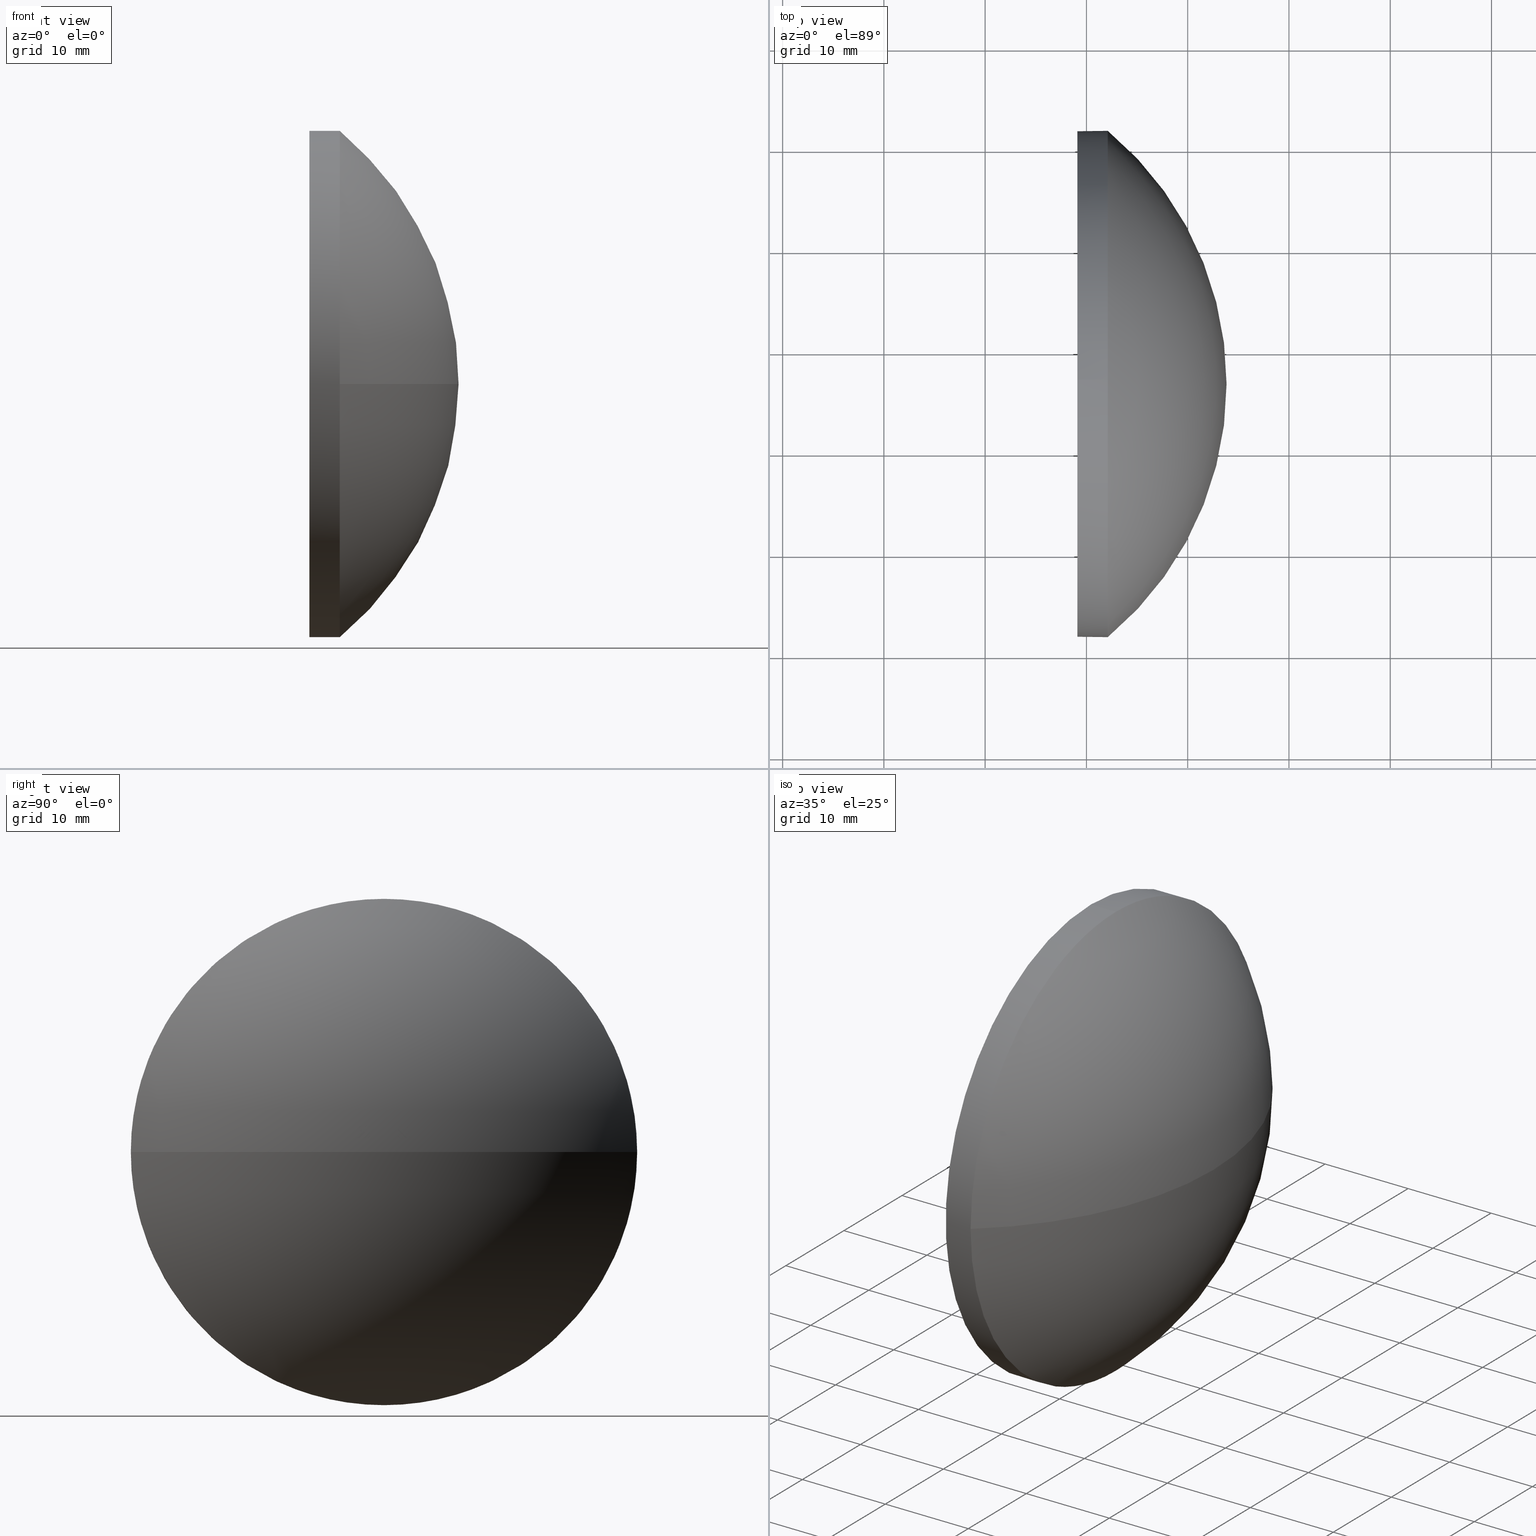
[diagram: canonical four-view strip — front | top / right | iso, engineering-drawing reading convention]
A machine part, canonical four-view strip (front | top / right | iso — engineering-drawing reading convention). The complete STEP part file that produces these views, byte-faithful:
ISO-10303-21;
HEADER;
FILE_DESCRIPTION (( 'STEP AP214' ),
    '1' );
FILE_NAME ('100066.STEP',
    '2019-04-30T06:48:40',
    ( '' ),
    ( '' ),
    'SwSTEP 2.0',
    'SolidWorks 2016',
    '' );
FILE_SCHEMA (( 'AUTOMOTIVE_DESIGN' ));
ENDSEC;

DATA;
#1 = CARTESIAN_POINT ( 'NONE',  ( 442.1104221299683600, 81.67075448152661500, -3.061616997868383800E-015 ) ) ;
#2 = CARTESIAN_POINT ( 'NONE',  ( 439.1104221299683600, 106.6707544815266100, 0.0000000000000000000 ) ) ;
#3 = DIRECTION ( 'NONE',  ( -0.0000000000000000000, 0.0000000000000000000, -1.000000000000000000 ) ) ;
#4 = PRODUCT_DEFINITION ( 'δ֪', '', #47, #152 ) ;
#5 = DIRECTION ( 'NONE',  ( 0.0000000000000000000, 1.000000000000000000, 0.0000000000000000000 ) ) ;
#6 = DIRECTION ( 'NONE',  ( 0.0000000000000000000, 1.224646799147353200E-016, -1.000000000000000000 ) ) ;
#7 =( LENGTH_UNIT ( ) NAMED_UNIT ( * ) SI_UNIT ( .MILLI., .METRE. ) );
#8 = UNCERTAINTY_MEASURE_WITH_UNIT (LENGTH_MEASURE( 1.000000000000000100E-005 ), #176, 'distance_accuracy_value', 'NONE');
#9 =( GEOMETRIC_REPRESENTATION_CONTEXT ( 3 ) GLOBAL_UNCERTAINTY_ASSIGNED_CONTEXT ( ( #126 ) ) GLOBAL_UNIT_ASSIGNED_CONTEXT ( ( #10, #79, #180 ) ) REPRESENTATION_CONTEXT ( 'NONE', 'WORKASPACE' ) );
#10 =( LENGTH_UNIT ( ) NAMED_UNIT ( * ) SI_UNIT ( .MILLI., .METRE. ) );
#11 = ORIENTED_EDGE ( 'NONE', *, *, #138, .T. ) ;
#12 = MECHANICAL_DESIGN_GEOMETRIC_PRESENTATION_REPRESENTATION (  '', ( #43 ), #51 ) ;
#13 = AXIS2_PLACEMENT_3D ( 'NONE', #2, #160, #186 ) ;
#14 = VERTEX_POINT ( 'NONE', #125 ) ;
#15 = STYLED_ITEM ( 'NONE', ( #89 ), #30 ) ;
#16 = ORIENTED_EDGE ( 'NONE', *, *, #128, .F. ) ;
#17 = CARTESIAN_POINT ( 'NONE',  ( 442.1104221299683600, 106.6707544815266100, 0.0000000000000000000 ) ) ;
#18 = UNCERTAINTY_MEASURE_WITH_UNIT (LENGTH_MEASURE( 1.000000000000000100E-005 ), #7, 'distance_accuracy_value', 'NONE');
#19 = DIRECTION ( 'NONE',  ( -1.000000000000000000, -0.0000000000000000000, -0.0000000000000000000 ) ) ;
#20 = DIRECTION ( 'NONE',  ( -0.0000000000000000000, 0.0000000000000000000, -1.000000000000000000 ) ) ;
#21 = DIRECTION ( 'NONE',  ( -1.000000000000000000, -0.0000000000000000000, -0.0000000000000000000 ) ) ;
#22 = MECHANICAL_DESIGN_GEOMETRIC_PRESENTATION_REPRESENTATION (  '', ( #15 ), #9 ) ;
#23 = SURFACE_STYLE_USAGE ( .BOTH. , #98 ) ;
#24 = AXIS2_PLACEMENT_3D ( 'NONE', #73, #35, #175 ) ;
#25 = VECTOR ( 'NONE', #71, 1000.000000000000000 ) ;
#26 = VERTEX_POINT ( 'NONE', #148 ) ;
#27 = ORIENTED_EDGE ( 'NONE', *, *, #138, .F. ) ;
#28 = ORIENTED_EDGE ( 'NONE', *, *, #97, .F. ) ;
#29 = AXIS2_PLACEMENT_3D ( 'NONE', #129, #70, #114 ) ;
#30 = ADVANCED_BREP_SHAPE_REPRESENTATION ( '100066', ( #94, #123 ), #172 ) ;
#31 = EDGE_CURVE ( 'NONE', #183, #64, #182, .T. ) ;
#32 = CARTESIAN_POINT ( 'NONE',  ( 429.6881826927810800, 106.6707544815266100, 25.00000000000000700 ) ) ;
#33 =( NAMED_UNIT ( * ) PLANE_ANGLE_UNIT ( ) SI_UNIT ( $, .RADIAN. ) );
#34 = PLANE ( 'NONE',  #157 ) ;
#35 = DIRECTION ( 'NONE',  ( -1.000000000000000000, -0.0000000000000000000, -0.0000000000000000000 ) ) ;
#36 = DIRECTION ( 'NONE',  ( -1.000000000000000000, -0.0000000000000000000, -0.0000000000000000000 ) ) ;
#37 = APPLICATION_CONTEXT ( 'automotive_design' ) ;
#38 = PRESENTATION_LAYER_ASSIGNMENT (  '', '', ( #15 ) ) ;
#39 = ADVANCED_FACE ( 'NONE', ( #40 ), #161, .T. ) ;
#40 = FACE_OUTER_BOUND ( 'NONE', #56, .T. ) ;
#41 = ORIENTED_EDGE ( 'NONE', *, *, #46, .F. ) ;
#42 = EDGE_CURVE ( 'NONE', #26, #64, #163, .T. ) ;
#43 = STYLED_ITEM ( 'NONE', ( #167 ), #94 ) ;
#44 = EDGE_CURVE ( 'NONE', #96, #67, #112, .T. ) ;
#45 = LINE ( 'NONE', #32, #25 ) ;
#46 = EDGE_CURVE ( 'NONE', #14, #84, #90, .T. ) ;
#47 = PRODUCT_DEFINITION_FORMATION_WITH_SPECIFIED_SOURCE ( '�κ�', '', #147, .NOT_KNOWN. ) ;
#48 = CARTESIAN_POINT ( 'NONE',  ( 442.1104221299683600, 131.6707544815266100, 0.0000000000000000000 ) ) ;
#49 = DIRECTION ( 'NONE',  ( 0.0000000000000000000, 1.000000000000000000, 0.0000000000000000000 ) ) ;
#50 = DIRECTION ( 'NONE',  ( 0.0000000000000000000, 0.0000000000000000000, 1.000000000000000000 ) ) ;
#51 =( GEOMETRIC_REPRESENTATION_CONTEXT ( 3 ) GLOBAL_UNCERTAINTY_ASSIGNED_CONTEXT ( ( #8 ) ) GLOBAL_UNIT_ASSIGNED_CONTEXT ( ( #176, #33, #127 ) ) REPRESENTATION_CONTEXT ( 'NONE', 'WORKASPACE' ) );
#52 = CARTESIAN_POINT ( 'NONE',  ( 0.0000000000000000000, 0.0000000000000000000, 0.0000000000000000000 ) ) ;
#53 = ORIENTED_EDGE ( 'NONE', *, *, #97, .T. ) ;
#54 = FILL_AREA_STYLE ('',( #115 ) ) ;
#55 = COLOUR_RGB ( '',1.000000000000000000, 1.000000000000000000, 1.000000000000000000 ) ;
#56 = EDGE_LOOP ( 'NONE', ( #16, #173, #53, #139, #104 ) ) ;
#57 = PRODUCT_RELATED_PRODUCT_CATEGORY ( 'part', '', ( #147 ) ) ;
#58 = COLOUR_RGB ( '',1.000000000000000000, 1.000000000000000000, 1.000000000000000000 ) ;
#59 = EDGE_CURVE ( 'NONE', #14, #67, #45, .T. ) ;
#60 = CARTESIAN_POINT ( 'NONE',  ( 421.3343309108719800, 106.6707544815266100, 0.0000000000000000000 ) ) ;
#61 = SHAPE_DEFINITION_REPRESENTATION ( #66, #30 ) ;
#62 = FILL_AREA_STYLE_COLOUR ( '', #55 ) ;
#63 = DIRECTION ( 'NONE',  ( -1.000000000000000000, -0.0000000000000000000, -0.0000000000000000000 ) ) ;
#64 = VERTEX_POINT ( 'NONE', #1 ) ;
#65 = LINE ( 'NONE', #77, #93 ) ;
#66 = PRODUCT_DEFINITION_SHAPE ( 'NONE', 'NONE',  #4 ) ;
#67 = VERTEX_POINT ( 'NONE', #162 ) ;
#68 = CIRCLE ( 'NONE', #108, 32.50609121909636900 ) ;
#69 = CARTESIAN_POINT ( 'NONE',  ( 442.1104221299683600, 106.6707544815266100, 0.0000000000000000000 ) ) ;
#70 = DIRECTION ( 'NONE',  ( -1.000000000000000000, -0.0000000000000000000, -0.0000000000000000000 ) ) ;
#71 = DIRECTION ( 'NONE',  ( -1.000000000000000000, -0.0000000000000000000, -0.0000000000000000000 ) ) ;
#72 = DIRECTION ( 'NONE',  ( 0.0000000000000000000, 0.0000000000000000000, -1.000000000000000000 ) ) ;
#73 = CARTESIAN_POINT ( 'NONE',  ( 429.6881826927810800, 106.6707544815266100, 0.0000000000000000000 ) ) ;
#74 = CARTESIAN_POINT ( 'NONE',  ( 442.1104221299683600, 106.6707544815266100, -25.00000000000000700 ) ) ;
#75 = FACE_OUTER_BOUND ( 'NONE', #185, .T. ) ;
#76 = EDGE_LOOP ( 'NONE', ( #11, #113 ) ) ;
#77 = CARTESIAN_POINT ( 'NONE',  ( 429.6881826927810800, 106.6707544815266100, -25.00000000000000700 ) ) ;
#78 = DIRECTION ( 'NONE',  ( 1.000000000000000000, 0.0000000000000000000, 0.0000000000000000000 ) ) ;
#79 =( NAMED_UNIT ( * ) PLANE_ANGLE_UNIT ( ) SI_UNIT ( $, .RADIAN. ) );
#80 = ADVANCED_FACE ( 'NONE', ( #121 ), #141, .T. ) ;
#81 = SURFACE_STYLE_FILL_AREA ( #153 ) ;
#82 = ORIENTED_EDGE ( 'NONE', *, *, #118, .T. ) ;
#83 = FACE_OUTER_BOUND ( 'NONE', #76, .T. ) ;
#84 = VERTEX_POINT ( 'NONE', #48 ) ;
#85 = DIRECTION ( 'NONE',  ( -1.000000000000000000, -0.0000000000000000000, -0.0000000000000000000 ) ) ;
#86 = CARTESIAN_POINT ( 'NONE',  ( 442.1104221299683600, 106.6707544815266100, 0.0000000000000000000 ) ) ;
#87 = CARTESIAN_POINT ( 'NONE',  ( 439.1104221299683600, 106.6707544815266100, 0.0000000000000000000 ) ) ;
#88 =( NAMED_UNIT ( * ) SI_UNIT ( $, .STERADIAN. ) SOLID_ANGLE_UNIT ( ) );
#89 = PRESENTATION_STYLE_ASSIGNMENT (( #120 ) ) ;
#90 = CIRCLE ( 'NONE', #136, 25.00000000000000700 ) ;
#91 = APPLICATION_PROTOCOL_DEFINITION ( 'draft international standard', 'automotive_design', 1998, #37 ) ;
#92 = SURFACE_SIDE_STYLE ('',( #95 ) ) ;
#93 = VECTOR ( 'NONE', #19, 1000.000000000000000 ) ;
#94 = MANIFOLD_SOLID_BREP ( '��ת1', #137 ) ;
#95 = SURFACE_STYLE_FILL_AREA ( #54 ) ;
#96 = VERTEX_POINT ( 'NONE', #117 ) ;
#97 = EDGE_CURVE ( 'NONE', #64, #14, #122, .T. ) ;
#98 = SURFACE_SIDE_STYLE ('',( #81 ) ) ;
#99 = ORIENTED_EDGE ( 'NONE', *, *, #42, .T. ) ;
#100 = DIRECTION ( 'NONE',  ( 0.0000000000000000000, 0.0000000000000000000, 1.000000000000000000 ) ) ;
#101 = PRESENTATION_LAYER_ASSIGNMENT (  '', '', ( #43 ) ) ;
#102 = CARTESIAN_POINT ( 'NONE',  ( 439.1104221299683600, 106.6707544815266100, 0.0000000000000000000 ) ) ;
#103 = DIRECTION ( 'NONE',  ( 0.0000000000000000000, 0.0000000000000000000, 1.000000000000000000 ) ) ;
#104 = ORIENTED_EDGE ( 'NONE', *, *, #44, .F. ) ;
#105 = APPLICATION_PROTOCOL_DEFINITION ( 'draft international standard', 'automotive_design', 1998, #155 ) ;
#106 = DIRECTION ( 'NONE',  ( 0.0000000000000000000, 0.0000000000000000000, 1.000000000000000000 ) ) ;
#107 = ORIENTED_EDGE ( 'NONE', *, *, #42, .F. ) ;
#108 = AXIS2_PLACEMENT_3D ( 'NONE', #60, #150, #130 ) ;
#109 = CIRCLE ( 'NONE', #140, 25.00000000000000700 ) ;
#110 = ORIENTED_EDGE ( 'NONE', *, *, #128, .T. ) ;
#111 = AXIS2_PLACEMENT_3D ( 'NONE', #69, #85, #103 ) ;
#112 = CIRCLE ( 'NONE', #13, 25.00000000000000700 ) ;
#113 = ORIENTED_EDGE ( 'NONE', *, *, #44, .T. ) ;
#114 = DIRECTION ( 'NONE',  ( 0.0000000000000000000, 0.0000000000000000000, 1.000000000000000000 ) ) ;
#115 = FILL_AREA_STYLE_COLOUR ( '', #58 ) ;
#116 = EDGE_LOOP ( 'NONE', ( #107, #142, #41, #28 ) ) ;
#117 = CARTESIAN_POINT ( 'NONE',  ( 439.1104221299683600, 106.6707544815266100, -25.00000000000000700 ) ) ;
#118 = EDGE_CURVE ( 'NONE', #84, #183, #151, .T. ) ;
#119 = ADVANCED_FACE ( 'NONE', ( #181 ), #171, .T. ) ;
#120 = SURFACE_STYLE_USAGE ( .BOTH. , #92 ) ;
#121 = FACE_OUTER_BOUND ( 'NONE', #145, .T. ) ;
#122 = CIRCLE ( 'NONE', #158, 25.00000000000000700 ) ;
#123 = AXIS2_PLACEMENT_3D ( 'NONE', #52, #106, #78 ) ;
#124 = ORIENTED_EDGE ( 'NONE', *, *, #154, .F. ) ;
#125 = CARTESIAN_POINT ( 'NONE',  ( 442.1104221299683600, 106.6707544815266100, 25.00000000000000700 ) ) ;
#126 = UNCERTAINTY_MEASURE_WITH_UNIT (LENGTH_MEASURE( 1.000000000000000100E-005 ), #10, 'distance_accuracy_value', 'NONE');
#127 =( NAMED_UNIT ( * ) SI_UNIT ( $, .STERADIAN. ) SOLID_ANGLE_UNIT ( ) );
#128 = EDGE_CURVE ( 'NONE', #183, #96, #65, .T. ) ;
#129 = CARTESIAN_POINT ( 'NONE',  ( 429.6881826927810800, 106.6707544815266100, 0.0000000000000000000 ) ) ;
#130 = DIRECTION ( 'NONE',  ( 1.000000000000000000, 0.0000000000000000000, 0.0000000000000000000 ) ) ;
#131 = SPHERICAL_SURFACE ( 'NONE', #164, 32.50609121909638300 ) ;
#132 = AXIS2_PLACEMENT_3D ( 'NONE', #133, #3, #5 ) ;
#133 = CARTESIAN_POINT ( 'NONE',  ( 421.3343309108719800, 106.6707544815266100, 0.0000000000000000000 ) ) ;
#134 = ADVANCED_FACE ( 'NONE', ( #83 ), #34, .F. ) ;
#135 =( NAMED_UNIT ( * ) PLANE_ANGLE_UNIT ( ) SI_UNIT ( $, .RADIAN. ) );
#136 = AXIS2_PLACEMENT_3D ( 'NONE', #17, #178, #50 ) ;
#137 = CLOSED_SHELL ( 'NONE', ( #80, #168, #119, #39, #134 ) ) ;
#138 = EDGE_CURVE ( 'NONE', #67, #96, #109, .T. ) ;
#139 = ORIENTED_EDGE ( 'NONE', *, *, #59, .T. ) ;
#140 = AXIS2_PLACEMENT_3D ( 'NONE', #87, #63, #165 ) ;
#141 = CYLINDRICAL_SURFACE ( 'NONE', #24, 25.00000000000000700 ) ;
#142 = ORIENTED_EDGE ( 'NONE', *, *, #154, .T. ) ;
#143 = ORIENTED_EDGE ( 'NONE', *, *, #118, .F. ) ;
#144 = AXIS2_PLACEMENT_3D ( 'NONE', #179, #6, #170 ) ;
#145 = EDGE_LOOP ( 'NONE', ( #82, #110, #27, #159, #169 ) ) ;
#146 = CARTESIAN_POINT ( 'NONE',  ( 421.3343309108719800, 106.6707544815266100, 0.0000000000000000000 ) ) ;
#147 = PRODUCT ( '100066', '100066', '', ( #156 ) ) ;
#148 = CARTESIAN_POINT ( 'NONE',  ( 453.8404221299683200, 106.6707544815266100, 0.0000000000000000000 ) ) ;
#149 = AXIS2_PLACEMENT_3D ( 'NONE', #177, #21, #174 ) ;
#150 = DIRECTION ( 'NONE',  ( -0.0000000000000000000, 0.0000000000000000000, 1.000000000000000000 ) ) ;
#151 = CIRCLE ( 'NONE', #111, 25.00000000000000700 ) ;
#152 = PRODUCT_DEFINITION_CONTEXT ( 'detailed design', #37, 'design' ) ;
#153 = FILL_AREA_STYLE ('',( #62 ) ) ;
#154 = EDGE_CURVE ( 'NONE', #26, #84, #68, .T. ) ;
#155 = APPLICATION_CONTEXT ( 'automotive_design' ) ;
#156 = PRODUCT_CONTEXT ( 'NONE', #155, 'mechanical' ) ;
#157 = AXIS2_PLACEMENT_3D ( 'NONE', #102, #166, #72 ) ;
#158 = AXIS2_PLACEMENT_3D ( 'NONE', #86, #36, #100 ) ;
#159 = ORIENTED_EDGE ( 'NONE', *, *, #59, .F. ) ;
#160 = DIRECTION ( 'NONE',  ( -1.000000000000000000, -0.0000000000000000000, -0.0000000000000000000 ) ) ;
#161 = CYLINDRICAL_SURFACE ( 'NONE', #29, 25.00000000000000700 ) ;
#162 = CARTESIAN_POINT ( 'NONE',  ( 439.1104221299683600, 106.6707544815266100, 25.00000000000000700 ) ) ;
#163 = CIRCLE ( 'NONE', #144, 32.50609121909638300 ) ;
#164 = AXIS2_PLACEMENT_3D ( 'NONE', #146, #20, #49 ) ;
#165 = DIRECTION ( 'NONE',  ( 0.0000000000000000000, 0.0000000000000000000, 1.000000000000000000 ) ) ;
#166 = DIRECTION ( 'NONE',  ( 1.000000000000000000, 0.0000000000000000000, 0.0000000000000000000 ) ) ;
#167 = PRESENTATION_STYLE_ASSIGNMENT (( #23 ) ) ;
#168 = ADVANCED_FACE ( 'NONE', ( #75 ), #131, .T. ) ;
#169 = ORIENTED_EDGE ( 'NONE', *, *, #46, .T. ) ;
#170 = DIRECTION ( 'NONE',  ( 0.0000000000000000000, 1.000000000000000000, 1.224646799147353200E-016 ) ) ;
#171 = SPHERICAL_SURFACE ( 'NONE', #132, 32.50609121909638300 ) ;
#172 =( GEOMETRIC_REPRESENTATION_CONTEXT ( 3 ) GLOBAL_UNCERTAINTY_ASSIGNED_CONTEXT ( ( #18 ) ) GLOBAL_UNIT_ASSIGNED_CONTEXT ( ( #7, #135, #88 ) ) REPRESENTATION_CONTEXT ( 'NONE', 'WORKASPACE' ) );
#173 = ORIENTED_EDGE ( 'NONE', *, *, #31, .T. ) ;
#174 = DIRECTION ( 'NONE',  ( 0.0000000000000000000, 0.0000000000000000000, 1.000000000000000000 ) ) ;
#175 = DIRECTION ( 'NONE',  ( 0.0000000000000000000, 0.0000000000000000000, 1.000000000000000000 ) ) ;
#176 =( LENGTH_UNIT ( ) NAMED_UNIT ( * ) SI_UNIT ( .MILLI., .METRE. ) );
#177 = CARTESIAN_POINT ( 'NONE',  ( 442.1104221299683600, 106.6707544815266100, 0.0000000000000000000 ) ) ;
#178 = DIRECTION ( 'NONE',  ( -1.000000000000000000, -0.0000000000000000000, -0.0000000000000000000 ) ) ;
#179 = CARTESIAN_POINT ( 'NONE',  ( 421.3343309108719800, 106.6707544815266100, 0.0000000000000000000 ) ) ;
#180 =( NAMED_UNIT ( * ) SI_UNIT ( $, .STERADIAN. ) SOLID_ANGLE_UNIT ( ) );
#181 = FACE_OUTER_BOUND ( 'NONE', #116, .T. ) ;
#182 = CIRCLE ( 'NONE', #149, 25.00000000000000700 ) ;
#183 = VERTEX_POINT ( 'NONE', #74 ) ;
#184 = ORIENTED_EDGE ( 'NONE', *, *, #31, .F. ) ;
#185 = EDGE_LOOP ( 'NONE', ( #124, #99, #184, #143 ) ) ;
#186 = DIRECTION ( 'NONE',  ( 0.0000000000000000000, 0.0000000000000000000, 1.000000000000000000 ) ) ;
ENDSEC;
END-ISO-10303-21;
